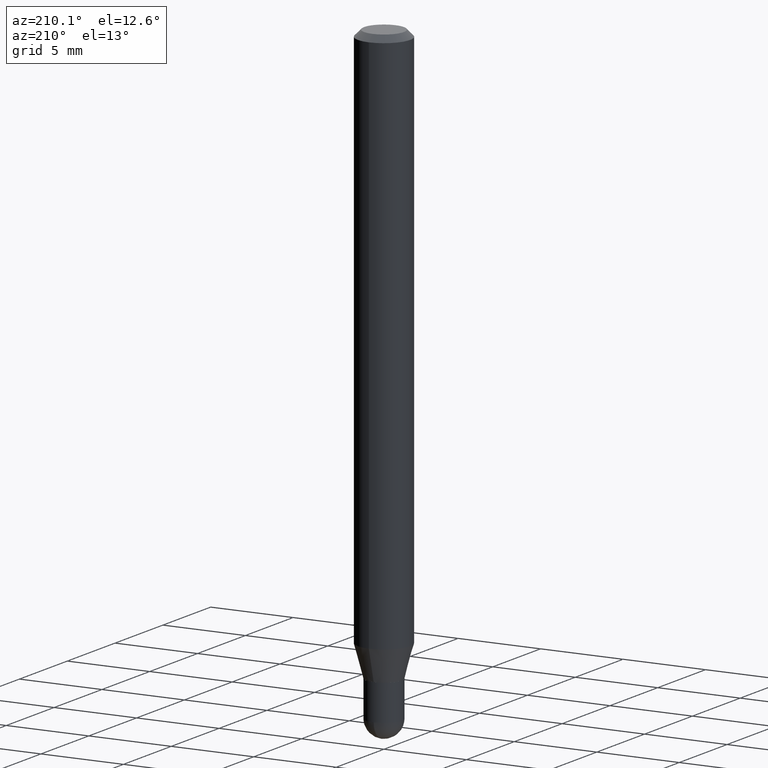
[diagram: clean part render]
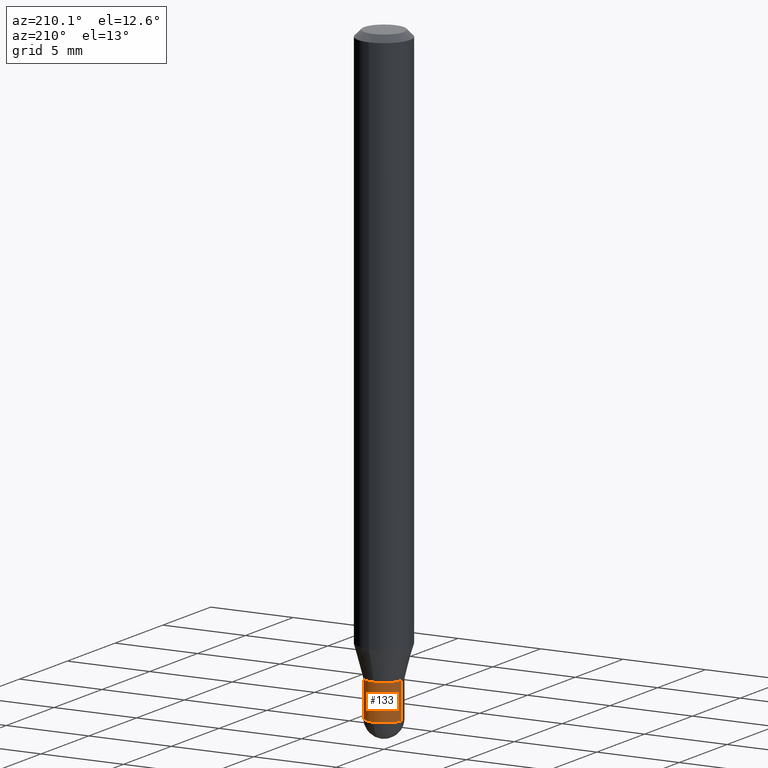
[diagram: same view with one face highlighted and labeled with its STEP entity id]
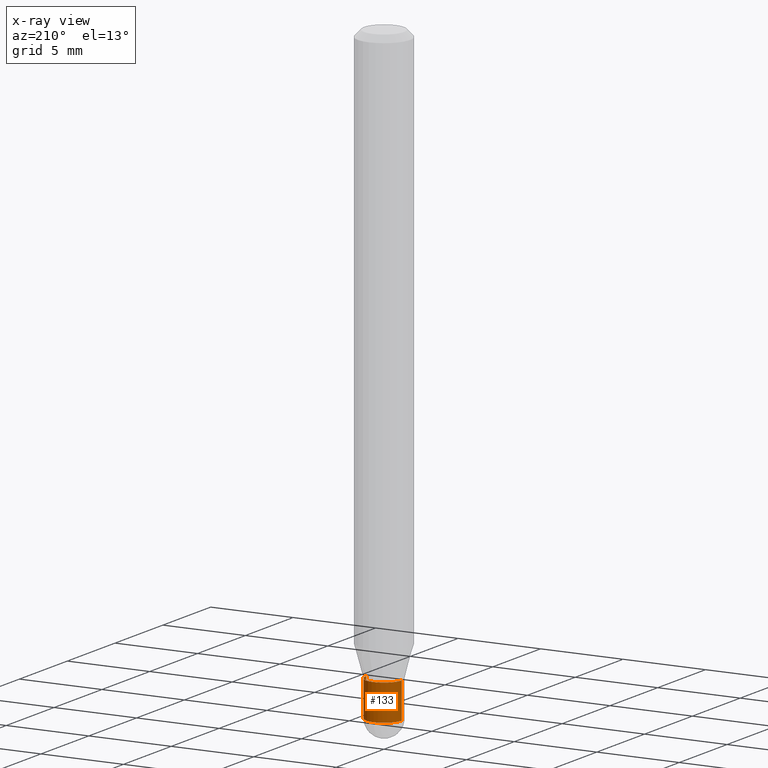
[diagram: x-ray of the same camera — body ghosted, the highlighted face saturated]
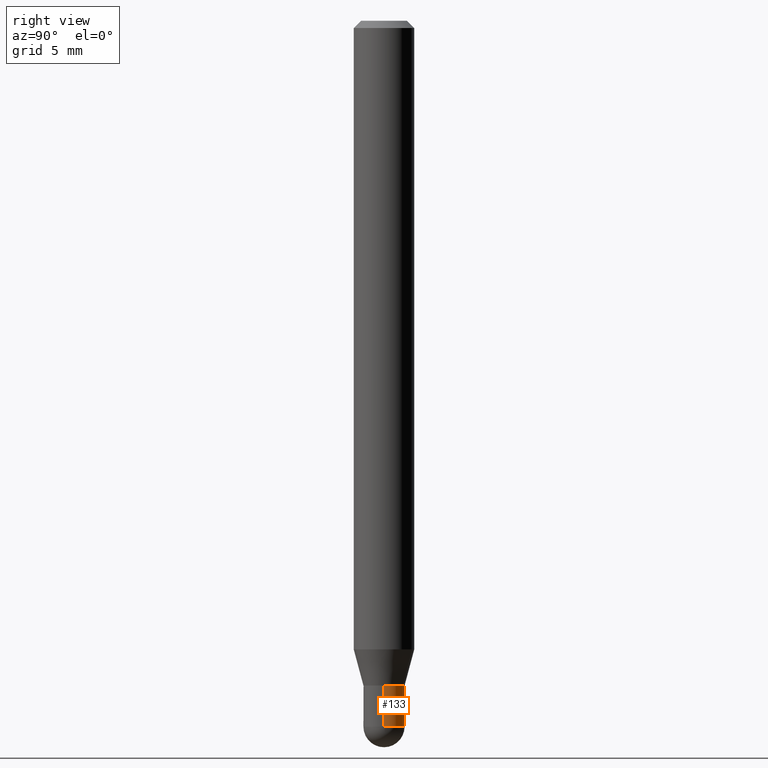
[diagram: same view with one face highlighted and labeled with its STEP entity id]
A machine part, auxiliary view. The second image highlights one B-rep face of the part: STEP entity #133.
The next image is the same camera in x-ray: the body ghosted, the highlighted face saturated — about 0% of this face is hidden behind the body in this view.
A second angle (right view) of the same face is appended — the face is thin or edge-on in the first view.
In plain terms, the highlighted cylindrical surface (edge-blend (fillet) strip) has radius 1.0795 mm, axis along (-0, 0, 1).
Its self-contained STEP definition (entity closure, byte-faithful):
#6 = DIRECTION ( 'NONE',  ( -2.445468806185136597E-29, 3.491481338843145583E-15, 1.000000000000000000 ) ) ;
#8 = VERTEX_POINT ( 'NONE', #51 ) ;
#43 = CARTESIAN_POINT ( 'NONE',  ( 3.356405936489099934E-29, -4.792058137562217412E-15, -1.372500000000000275 ) ) ;
#46 = EDGE_CURVE ( 'NONE', #164, #403, #413, .T. ) ;
#47 = ORIENTED_EDGE ( 'NONE', *, *, #353, .T. ) ;
#51 = CARTESIAN_POINT ( 'NONE',  ( 0.04250000000000000999, -5.237222008264719754E-15, -1.457500000000000240 ) ) ;
#53 = VERTEX_POINT ( 'NONE', #178 ) ;
#62 = CIRCLE ( 'NONE', #289, 0.04250000000000000999 ) ;
#73 = DIRECTION ( 'NONE',  ( -2.445468806185136597E-29, 3.491481338843145583E-15, 1.000000000000000000 ) ) ;
#77 = ORIENTED_EDGE ( 'NONE', *, *, #93, .F. ) ;
#83 = CIRCLE ( 'NONE', #374, 0.04250000000000000999 ) ;
#93 = EDGE_CURVE ( 'NONE', #8, #164, #227, .T. ) ;
#133 = ADVANCED_FACE ( 'NONE', ( #446 ), #371, .T. ) ;
#138 = AXIS2_PLACEMENT_3D ( 'NONE', #43, #6, #162 ) ;
#147 = DIRECTION ( 'NONE',  ( 1.000000000000000000, -6.982962677686266711E-15, 4.876176775795935793E-29 ) ) ;
#148 = VECTOR ( 'NONE', #343, 39.37007874015748143 ) ;
#155 = VECTOR ( 'NONE', #512, 39.37007874015748143 ) ;
#156 = LINE ( 'NONE', #351, #155 ) ;
#162 = DIRECTION ( 'NONE',  ( 1.000000000000000000, -6.982962677686276177E-15, 0.000000000000000000 ) ) ;
#164 = VERTEX_POINT ( 'NONE', #406 ) ;
#168 = CARTESIAN_POINT ( 'NONE',  ( 3.019806626980780501E-16, 0.04249999999999488215, -1.457500000000000462 ) ) ;
#172 = ORIENTED_EDGE ( 'NONE', *, *, #335, .T. ) ;
#178 = CARTESIAN_POINT ( 'NONE',  ( -0.04250000000000000999, -4.638465431765009073E-15, -1.457500000000000240 ) ) ;
#192 = EDGE_LOOP ( 'NONE', ( #510, #47, #493, #77, #172 ) ) ;
#193 = CARTESIAN_POINT ( 'NONE',  ( 3.564270785014837509E-29, -5.088834051363884851E-15, -1.457500000000000240 ) ) ;
#227 = LINE ( 'NONE', #308, #148 ) ;
#229 = CARTESIAN_POINT ( 'NONE',  ( 3.564270785014837509E-29, -5.088834051363884851E-15, -1.457500000000000240 ) ) ;
#247 = EDGE_CURVE ( 'NONE', #441, #53, #62, .T. ) ;
#276 = DIRECTION ( 'NONE',  ( 1.000000000000000000, -6.982962677686273810E-15, 0.000000000000000000 ) ) ;
#289 = AXIS2_PLACEMENT_3D ( 'NONE', #193, #73, #276 ) ;
#302 = DIRECTION ( 'NONE',  ( -2.445468806185136597E-29, 3.491481338843145583E-15, 1.000000000000000000 ) ) ;
#308 = CARTESIAN_POINT ( 'NONE',  ( 0.04250000000000000999, -2.967759138016664042E-16, 2.072375129713273202E-30 ) ) ;
#332 = AXIS2_PLACEMENT_3D ( 'NONE', #340, #302, #147 ) ;
#335 = EDGE_CURVE ( 'NONE', #8, #441, #83, .T. ) ;
#340 = CARTESIAN_POINT ( 'NONE',  ( 0.000000000000000000, 0.000000000000000000, 0.000000000000000000 ) ) ;
#343 = DIRECTION ( 'NONE',  ( -2.445468806185136877E-29, 3.491481338843145188E-15, 1.000000000000000000 ) ) ;
#351 = CARTESIAN_POINT ( 'NONE',  ( -0.04250000000000000999, 3.019806626980426500E-16, -2.090547413358335560E-30 ) ) ;
#352 = CARTESIAN_POINT ( 'NONE',  ( -0.04249999999999999611, -4.638465431765008284E-15, -1.372500000000000275 ) ) ;
#353 = EDGE_CURVE ( 'NONE', #53, #403, #156, .T. ) ;
#371 = CYLINDRICAL_SURFACE ( 'NONE', #332, 0.04250000000000000999 ) ;
#374 = AXIS2_PLACEMENT_3D ( 'NONE', #229, #382, #390 ) ;
#382 = DIRECTION ( 'NONE',  ( -2.445468806185136597E-29, 3.491481338843145583E-15, 1.000000000000000000 ) ) ;
#390 = DIRECTION ( 'NONE',  ( 1.000000000000000000, -6.982962677686273810E-15, 0.000000000000000000 ) ) ;
#403 = VERTEX_POINT ( 'NONE', #352 ) ;
#406 = CARTESIAN_POINT ( 'NONE',  ( 0.04249999999999999611, -5.088834051363884062E-15, -1.372500000000000275 ) ) ;
#413 = CIRCLE ( 'NONE', #138, 0.04249999999999999611 ) ;
#441 = VERTEX_POINT ( 'NONE', #168 ) ;
#446 = FACE_OUTER_BOUND ( 'NONE', #192, .T. ) ;
#493 = ORIENTED_EDGE ( 'NONE', *, *, #46, .F. ) ;
#510 = ORIENTED_EDGE ( 'NONE', *, *, #247, .T. ) ;
#512 = DIRECTION ( 'NONE',  ( -2.445468806185136877E-29, 3.491481338843145188E-15, 1.000000000000000000 ) ) ;